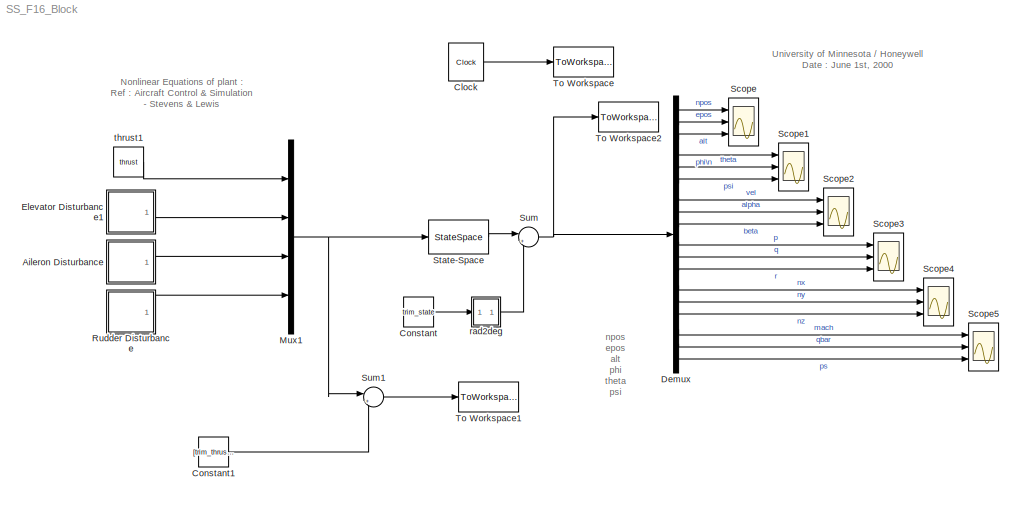
MODEL SS_F16_Block
KIND model
CONFIG AbsTol = auto
CONFIG FixedStep = deltaT
CONFIG MaxStep = auto
CONFIG MinStep = auto
CONFIG RelTol = 1e-3
CONFIG Solver = ode5
CONFIG SolverMode = Auto
CONFIG StartTime = 0.0
CONFIG StopTime = 30.0
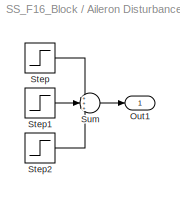
BLOCK [SubSystem] Aileron Disturbance
  Ports = [0, 1]
  TreatAsAtomicUnit = off
BLOCK [Outport] Aileron Disturbance/Out1
BLOCK [Step] Aileron Disturbance/Step
  After = DisAil_1
  SampleTime = 0
BLOCK [Step] Aileron Disturbance/Step1
  After = DisAil_2
  SampleTime = 0
  Time = 3
BLOCK [Step] Aileron Disturbance/Step2
  After = DisAil_3
  SampleTime = 0
  Time = 5
BLOCK [Sum] Aileron Disturbance/Sum
  IconShape = round
  Inputs = +++
  Ports = [3, 1]
BLOCK [Clock] Clock
  Decimation = 50
  DisplayTime = on
BLOCK [Constant] Constant
  Value = trim_state
BLOCK [Constant] Constant1
  Value = [trim_thrust; trim_control(1); trim_control(2); trim_control(3)]
BLOCK [Demux] Demux
  Outputs = 18
  Ports = [1, 18]
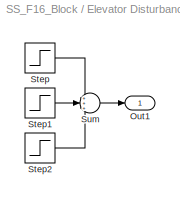
BLOCK [SubSystem] Elevator Disturbance1
  Ports = [0, 1]
  TreatAsAtomicUnit = off
BLOCK [Outport] Elevator Disturbance1/Out1
BLOCK [Step] Elevator Disturbance1/Step
  After = DisEle_1
  SampleTime = 0
BLOCK [Step] Elevator Disturbance1/Step1
  After = DisEle_2
  SampleTime = 0
  Time = 3
BLOCK [Step] Elevator Disturbance1/Step2
  After = DisEle_3
  SampleTime = 0
  Time = 5
BLOCK [Sum] Elevator Disturbance1/Sum
  IconShape = round
  Inputs = +++
  Ports = [3, 1]
BLOCK [Mux] Mux1
  DisplayOption = bar
  Ports = [4, 1]
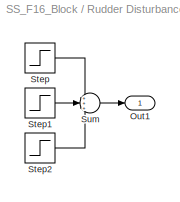
BLOCK [SubSystem] Rudder Disturbance
  Ports = [0, 1]
  TreatAsAtomicUnit = off
BLOCK [Outport] Rudder Disturbance/Out1
BLOCK [Step] Rudder Disturbance/Step
  After = DisRud_1
  SampleTime = 0
BLOCK [Step] Rudder Disturbance/Step1
  After = DisRud_2
  SampleTime = 0
  Time = 1.5
BLOCK [Step] Rudder Disturbance/Step2
  After = DisRud_3
  SampleTime = 0
  Time = 2
BLOCK [Sum] Rudder Disturbance/Sum
  IconShape = round
  Inputs = +++
  Ports = [3, 1]
BLOCK [Scope] Scope
  DataFormat = StructureWithTime
  Decimation = 20
  LimitDataPoints = off
  NumInputPorts = 3
  Ports = [3]
  YMax = 5~5~5
  YMin = -5~-5~-5
BLOCK [Scope] Scope1
  DataFormat = StructureWithTime
  Decimation = 20
  LimitDataPoints = off
  NumInputPorts = 3
  Ports = [3]
  SaveName = ScopeData1
  YMax = 5~5~5
  YMin = -5~-5~-5
BLOCK [Scope] Scope2
  DataFormat = StructureWithTime
  Decimation = 20
  LimitDataPoints = off
  NumInputPorts = 3
  Ports = [3]
  SaveName = ScopeData2
  YMax = 5~5~5
  YMin = -5~-5~-5
  ZoomMode = xonly
BLOCK [Scope] Scope3
  DataFormat = StructureWithTime
  Decimation = 20
  LimitDataPoints = off
  NumInputPorts = 3
  Ports = [3]
  SaveName = ScopeData3
  YMax = 5~5~5
  YMin = -5~-5~-5
BLOCK [Scope] Scope4
  DataFormat = StructureWithTime
  Decimation = 20
  LimitDataPoints = off
  NumInputPorts = 3
  Ports = [3]
  SaveName = ScopeData4
  YMax = 5~5~5
  YMin = -5~-5~-5
BLOCK [Scope] Scope5
  DataFormat = StructureWithTime
  NumInputPorts = 3
  Ports = [3]
  SaveName = ScopeData5
  YMax = 5~5~5
  YMin = -5~-5~-5
BLOCK [StateSpace] State-Space
  A = A
  B = B
  C = C
  D = D
BLOCK [Sum] Sum
  IconShape = round
  Inputs = |++
  Ports = [2, 1]
BLOCK [Sum] Sum1
  IconShape = round
  Inputs = |++
  Ports = [2, 1]
BLOCK [ToWorkspace] To Workspace
  Decimation = 100
  MaxDataPoints = inf
  SampleTime = -1
  SaveFormat = Array
  VariableName = T
BLOCK [ToWorkspace] To Workspace1
  Decimation = 100
  MaxDataPoints = inf
  SampleTime = -1
  SaveFormat = Array
  VariableName = controls
BLOCK [ToWorkspace] To Workspace2
  Decimation = 100
  MaxDataPoints = inf
  SampleTime = -1
  SaveFormat = Array
  VariableName = simout
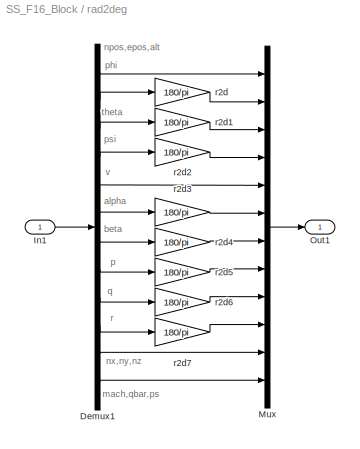
BLOCK [SubSystem] rad2deg
  Ports = [1, 1]
  TreatAsAtomicUnit = off
BLOCK [Demux] rad2deg/Demux1
  Outputs = [3 1 1 1 1 1 1 1 1 1 3 3]
  Ports = [1, 12]
BLOCK [Inport] rad2deg/In1
BLOCK [Mux] rad2deg/Mux
  DisplayOption = bar
  Inputs = [3 1 1 1 1 1 1 1 1 1 3 3]
  Ports = [12, 1]
BLOCK [Outport] rad2deg/Out1
BLOCK [Gain] rad2deg/r2d
  Gain = 180/pi
BLOCK [Gain] rad2deg/r2d1
  Gain = 180/pi
BLOCK [Gain] rad2deg/r2d2
  Gain = 180/pi
BLOCK [Gain] rad2deg/r2d3
  Gain = 180/pi
BLOCK [Gain] rad2deg/r2d4
  Gain = 180/pi
BLOCK [Gain] rad2deg/r2d5
  Gain = 180/pi
BLOCK [Gain] rad2deg/r2d6
  Gain = 180/pi
BLOCK [Gain] rad2deg/r2d7
  Gain = 180/pi
BLOCK [Constant] thrust1
  Value = thrust
  VectorParams1D = off
ANNOTATION (root): Nonlinear Equations of plant :\nRef : Aircraft Control & Simulation\n- Stevens & Lewis
ANNOTATION (root): University of Minnesota / Honeywell\nDate : June 1st, 2000
ANNOTATION (root): npos\nepos\nalt\nphi\ntheta\npsi\nvel\nalpha\nbeta\np\nq\nr\nnx\nny\nnz\nmach\nqbar\nps\n
ANNOTATION rad2deg: alpha
ANNOTATION rad2deg: beta
ANNOTATION rad2deg: mach,qbar,ps
ANNOTATION rad2deg: npos,epos,alt
ANNOTATION rad2deg: nx,ny,nz
ANNOTATION rad2deg: p
ANNOTATION rad2deg: phi
ANNOTATION rad2deg: psi
ANNOTATION rad2deg: q
ANNOTATION rad2deg: r
ANNOTATION rad2deg: theta
ANNOTATION rad2deg: v
LINE Aileron Disturbance/Step1:1 -> Aileron Disturbance/Sum:2
LINE Aileron Disturbance/Step2:1 -> Aileron Disturbance/Sum:3
LINE Aileron Disturbance/Step:1 -> Aileron Disturbance/Sum:1
LINE Aileron Disturbance/Sum:1 -> Aileron Disturbance/Out1:1
LINE Aileron Disturbance:1 -> Mux1:3
LINE Clock:1 -> To Workspace:1
LINE Constant1:1 -> Sum1:2
LINE Constant:1 -> rad2deg:1
LINE Demux:1 -> Scope:1
LINE Demux:10 -> Scope3:1
LINE Demux:11 -> Scope3:2
LINE Demux:12 -> Scope3:3
LINE Demux:13 -> Scope4:1
LINE Demux:14 -> Scope4:2
LINE Demux:15 -> Scope4:3
LINE Demux:16 -> Scope5:1
LINE Demux:17 -> Scope5:2
LINE Demux:18 -> Scope5:3
LINE Demux:2 -> Scope:2
LINE Demux:3 -> Scope:3
LINE Demux:4 -> Scope1:1
LINE Demux:5 -> Scope1:2
LINE Demux:6 -> Scope1:3
LINE Demux:7 -> Scope2:1
LINE Demux:8 -> Scope2:2
LINE Demux:9 -> Scope2:3
LINE Elevator Disturbance1/Step1:1 -> Elevator Disturbance1/Sum:2
LINE Elevator Disturbance1/Step2:1 -> Elevator Disturbance1/Sum:3
LINE Elevator Disturbance1/Step:1 -> Elevator Disturbance1/Sum:1
LINE Elevator Disturbance1/Sum:1 -> Elevator Disturbance1/Out1:1
LINE Elevator Disturbance1:1 -> Mux1:2
NET Mux1:1 -> State-Space:1, Sum1:1
LINE Rudder Disturbance/Step1:1 -> Rudder Disturbance/Sum:2
LINE Rudder Disturbance/Step2:1 -> Rudder Disturbance/Sum:3
LINE Rudder Disturbance/Step:1 -> Rudder Disturbance/Sum:1
LINE Rudder Disturbance/Sum:1 -> Rudder Disturbance/Out1:1
LINE Rudder Disturbance:1 -> Mux1:4
LINE State-Space:1 -> Sum:1
LINE Sum1:1 -> To Workspace1:1
NET Sum:1 -> Demux:1, To Workspace2:1
LINE rad2deg/Demux1:1 -> rad2deg/Mux:1
LINE rad2deg/Demux1:10 -> rad2deg/r2d7:1
LINE rad2deg/Demux1:11 -> rad2deg/Mux:11
LINE rad2deg/Demux1:12 -> rad2deg/Mux:12
LINE rad2deg/Demux1:2 -> rad2deg/r2d:1
LINE rad2deg/Demux1:3 -> rad2deg/r2d1:1
LINE rad2deg/Demux1:4 -> rad2deg/r2d2:1
LINE rad2deg/Demux1:5 -> rad2deg/Mux:5
LINE rad2deg/Demux1:6 -> rad2deg/r2d3:1
LINE rad2deg/Demux1:7 -> rad2deg/r2d4:1
LINE rad2deg/Demux1:8 -> rad2deg/r2d5:1
LINE rad2deg/Demux1:9 -> rad2deg/r2d6:1
LINE rad2deg/In1:1 -> rad2deg/Demux1:1
LINE rad2deg/Mux:1 -> rad2deg/Out1:1
LINE rad2deg/r2d1:1 -> rad2deg/Mux:3
LINE rad2deg/r2d2:1 -> rad2deg/Mux:4
LINE rad2deg/r2d3:1 -> rad2deg/Mux:6
LINE rad2deg/r2d4:1 -> rad2deg/Mux:7
LINE rad2deg/r2d5:1 -> rad2deg/Mux:8
LINE rad2deg/r2d6:1 -> rad2deg/Mux:9
LINE rad2deg/r2d7:1 -> rad2deg/Mux:10
LINE rad2deg/r2d:1 -> rad2deg/Mux:2
LINE rad2deg:1 -> Sum:2
LINE thrust1:1 -> Mux1:1
note: NET lines group one-source signal fan-out (src -> all destinations, sorted); 1:1 wires keep LINE
